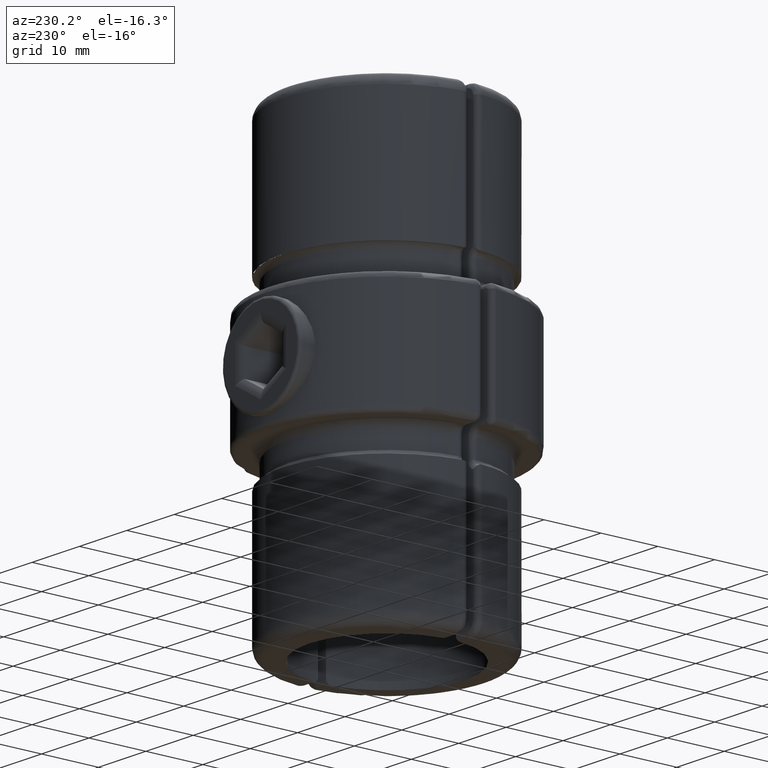
[diagram: clean part render]
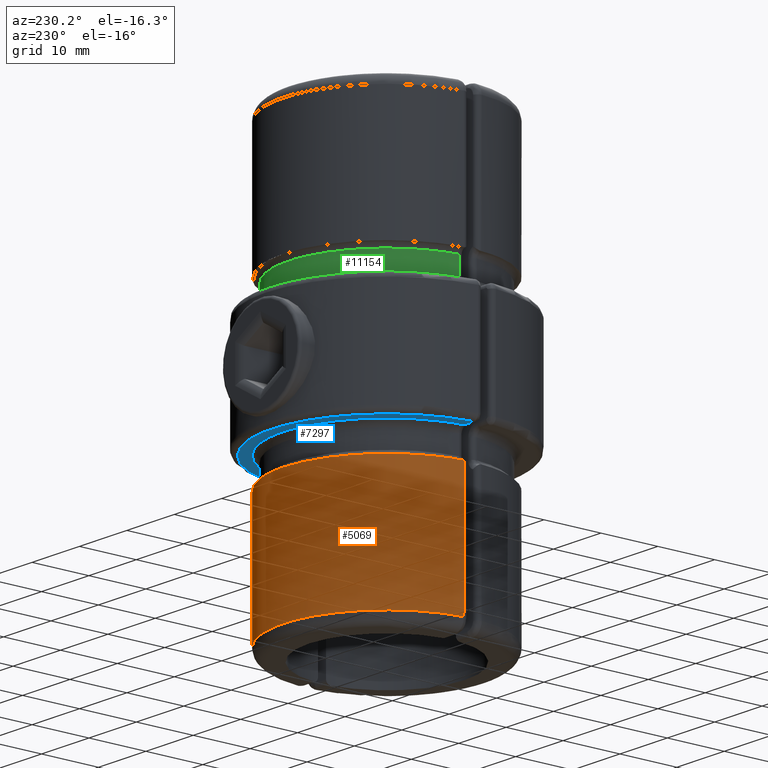
[diagram: same view with three faces highlighted in distinct colors, each labeled with its STEP entity id]
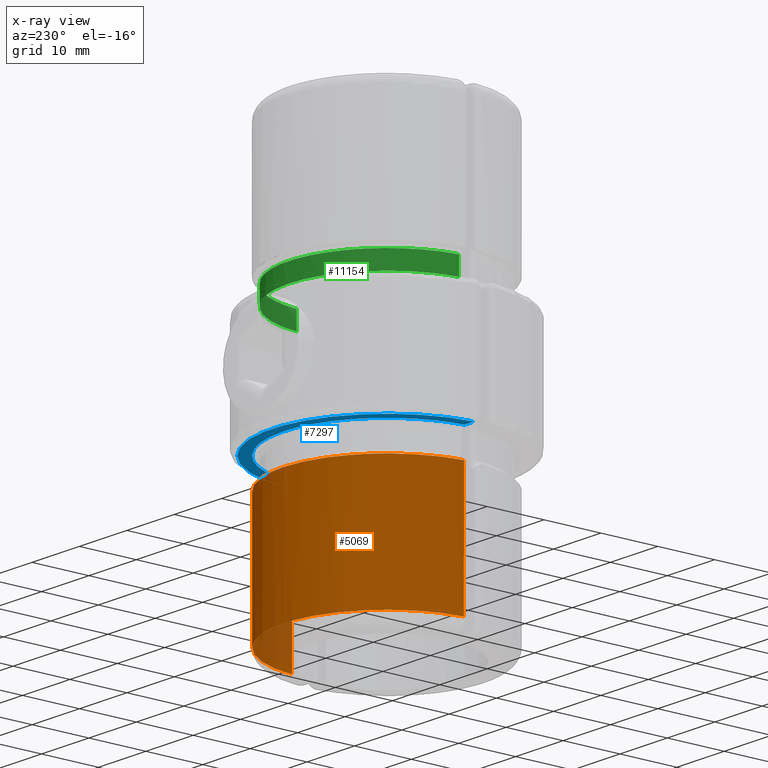
[diagram: x-ray of the same camera — body ghosted, the three highlighted faces saturated]
A machine part, auxiliary view with three faces highlighted in distinct colors.
The next image is the same camera in x-ray (body ghosted, the three faces saturated) — at least one of them is partly hidden behind the body in this view.
Their STEP definitions:

[orange] entity #5069 — the highlighted cylindrical surface (partial cylindrical patch) has radius 18.2 mm, axis along (0, 0, 1).
#38 = VERTEX_POINT ( 'NONE', #4909 ) ;
#111 = CARTESIAN_POINT ( 'NONE',  ( 4.380121277556170867, 16.95941650785749388, -15.00000000000031264 ) ) ;
#250 = CARTESIAN_POINT ( 'NONE',  ( -17.66106902134056966, 3.729701545054194156, -15.00000000000007105 ) ) ;
#346 = EDGE_CURVE ( 'NONE', #1439, #1183, #10502, .T. ) ;
#403 = AXIS2_PLACEMENT_3D ( 'NONE', #4196, #7875, #8712 ) ;
#529 = CARTESIAN_POINT ( 'NONE',  ( -0.6739819862175521203, 17.49998252577996993, -15.00000000000032152 ) ) ;
#541 = CARTESIAN_POINT ( 'NONE',  ( -18.13224606069826095, 0.8689655172413792705, -39.00000000000000000 ) ) ;
#586 = DIRECTION ( 'NONE',  ( 0.000000000000000000, 0.000000000000000000, -1.000000000000000000 ) ) ;
#690 = VERTEX_POINT ( 'NONE', #6384 ) ;
#745 = CARTESIAN_POINT ( 'NONE',  ( 17.27305462890032572, 5.034246575359755838, -14.99999999999999645 ) ) ;
#751 = VERTEX_POINT ( 'NONE', #3823 ) ;
#793 = VERTEX_POINT ( 'NONE', #10571 ) ;
#895 = CARTESIAN_POINT ( 'NONE',  ( -0.0004720416815231677911, 17.49999999417374497, -15.00000000000000355 ) ) ;
#962 = LINE ( 'NONE', #3210, #11663 ) ;
#1183 = VERTEX_POINT ( 'NONE', #11668 ) ;
#1185 = CARTESIAN_POINT ( 'NONE',  ( 18.13224606069826095, 0.8689655172413794926, -15.00000000000001421 ) ) ;
#1197 = CARTESIAN_POINT ( 'NONE',  ( 15.56702937144148002, 8.799113188046440825, -15.00000000000016165 ) ) ;
#1203 = CARTESIAN_POINT ( 'NONE',  ( -0.0004720416815231677911, 17.49999999417374497, -15.00000000000000355 ) ) ;
#1218 = LINE ( 'NONE', #541, #11778 ) ;
#1352 = CARTESIAN_POINT ( 'NONE',  ( -18.12661748769291137, 0.8338622282610865799, -15.00000000000007994 ) ) ;
#1439 = VERTEX_POINT ( 'NONE', #1185 ) ;
#1528 = CARTESIAN_POINT ( 'NONE',  ( -6.651357286202375541, 16.24140225114939895, -15.00000000000029665 ) ) ;
#1564 = EDGE_CURVE ( 'NONE', #690, #10381, #1218, .T. ) ;
#1686 = FACE_OUTER_BOUND ( 'NONE', #8565, .T. ) ;
#1714 = CARTESIAN_POINT ( 'NONE',  ( -14.22104873579294093, 10.65789473688684552, -14.99999999999999645 ) ) ;
#1770 = CARTESIAN_POINT ( 'NONE',  ( 13.36938902045911348, 11.72153165272349362, -15.00000000000021139 ) ) ;
#1928 = CARTESIAN_POINT ( 'NONE',  ( 12.40996758233285036, 12.67890031434739662, -15.00000000000023093 ) ) ;
#2074 = CARTESIAN_POINT ( 'NONE',  ( -14.22104873579294093, 10.65789473688684552, -14.99999999999999645 ) ) ;
#2257 = CARTESIAN_POINT ( 'NONE',  ( -17.99498383455773975, 1.994489871525304547, -15.00000000000003908 ) ) ;
#2423 = AXIS2_PLACEMENT_3D ( 'NONE', #7275, #9027, #10929 ) ;
#2479 = CARTESIAN_POINT ( 'NONE',  ( -3.710971642448241070, 17.11443139066549080, -15.00000000000031086 ) ) ;
#2516 = ORIENTED_EDGE ( 'NONE', *, *, #9982, .F. ) ;
#2552 = VERTEX_POINT ( 'NONE', #2745 ) ;
#2683 = CARTESIAN_POINT ( 'NONE',  ( 9.970821282658006268, 14.55117295317973358, -15.00000000000026645 ) ) ;
#2710 = EDGE_CURVE ( 'NONE', #793, #2552, #5264, .T. ) ;
#2745 = CARTESIAN_POINT ( 'NONE',  ( 14.22104873581677076, 10.65789473685701338, -15.00000000000000178 ) ) ;
#2902 = B_SPLINE_CURVE_WITH_KNOTS ( 'NONE', 3,
 ( #7600, #8416, #3051, #2949, #250, #8564, #9327, #10251, #4759, #11175, #5687, #2257, #3287, #4978, #9519, #6833, #1352 ),
 .UNSPECIFIED., .F., .F.,
 ( 4, 2, 2, 1, 1, 2, 2, 1, 1, 1, 4 ),
 ( 0.000000000000000000, 0.4555956175133276109, 0.5694945218916591667, 0.6833934262699907780, 0.7403428784591565837, 0.7474615599828022816, 0.7510209007446252416, 0.7545802415064482016, 0.7688176045537395975, 0.7972923306483221673, 0.9111912350266520022 ),
 .UNSPECIFIED. ) ;
#2949 = CARTESIAN_POINT ( 'NONE',  ( -17.58130636153897797, 4.031269316505646572, -15.00000000000007816 ) ) ;
#3051 = CARTESIAN_POINT ( 'NONE',  ( -17.15289150558912112, 5.506555992862709914, -15.00000000000010125 ) ) ;
#3210 = CARTESIAN_POINT ( 'NONE',  ( 18.13224606069826095, 0.8689655172413792705, -39.00000000000000000 ) ) ;
#3227 = CARTESIAN_POINT ( 'NONE',  ( -9.119384254672958434, 15.10866548306016632, -15.00000000000027711 ) ) ;
#3287 = CARTESIAN_POINT ( 'NONE',  ( -17.99927492146309049, 1.962552358403034880, -15.00000000000003730 ) ) ;
#3352 = CARTESIAN_POINT ( 'NONE',  ( -4.717378202085979133, 16.88484975057786031, -15.00000000000031442 ) ) ;
#3395 = CARTESIAN_POINT ( 'NONE',  ( -0.0004720416815231677911, 17.49999999417374497, -15.00000000000000355 ) ) ;
#3522 = CARTESIAN_POINT ( 'NONE',  ( 14.22104873581677076, 10.65789473685701338, -15.00000000000000178 ) ) ;
#3593 = CARTESIAN_POINT ( 'NONE',  ( 8.197108797939193892, 15.55172991679808980, -15.00000000000028422 ) ) ;
#3654 = CARTESIAN_POINT ( 'NONE',  ( 0.000000000000000000, -0.6999999999999992895, -14.99999999999998579 ) ) ;
#3672 = ORIENTED_EDGE ( 'NONE', *, *, #2710, .F. ) ;
#3674 = CARTESIAN_POINT ( 'NONE',  ( 1.346201822853276386, 17.50003492198668553, -15.00000000000031442 ) ) ;
#3775 = VERTEX_POINT ( 'NONE', #745 ) ;
#3823 = CARTESIAN_POINT ( 'NONE',  ( 18.13224606069826095, 0.8689655172413794926, -37.00000000000000000 ) ) ;
#3872 = CARTESIAN_POINT ( 'NONE',  ( 16.55833394935635994, 6.912440640826091887, -15.00000000000012790 ) ) ;
#3993 = CARTESIAN_POINT ( 'NONE',  ( 14.22104873581677076, 10.65789473685701338, -15.00000000000000178 ) ) ;
#4038 = CARTESIAN_POINT ( 'NONE',  ( 14.93954629395795841, 9.758274778438677188, -15.00000000000017941 ) ) ;
#4062 = CIRCLE ( 'NONE', #403, 18.19999999999999929 ) ;
#4137 = ORIENTED_EDGE ( 'NONE', *, *, #346, .F. ) ;
#4180 = CARTESIAN_POINT ( 'NONE',  ( -1.684860501366986840, 17.44220744737577533, -15.00000000000031974 ) ) ;
#4196 = CARTESIAN_POINT ( 'NONE',  ( 0.000000000000000000, -0.6999999999999992895, -37.00000000000000000 ) ) ;
#4487 = B_SPLINE_CURVE_WITH_KNOTS ( 'NONE', 3,
 ( #3522, #1770, #1928, #8145, #2683, #9060, #5545, #3593, #9995, #5506, #10919, #5415, #111, #6353, #9184, #3674, #895 ),
 .UNSPECIFIED., .F., .F.,
 ( 4, 2, 1, 2, 2, 1, 1, 2, 2, 4 ),
 ( 0.000000000000000000, 0.2500000000000000000, 0.3749999999999998890, 0.4374999999999999445, 0.5000000000000000000, 0.6250000000000001110, 0.6875000000000000000, 0.7187499999999998890, 0.7499999999999997780, 1.000000000000000000 ),
 .UNSPECIFIED. ) ;
#4554 = EDGE_CURVE ( 'NONE', #751, #690, #4062, .T. ) ;
#4571 = ORIENTED_EDGE ( 'NONE', *, *, #8736, .F. ) ;
#4700 = ORIENTED_EDGE ( 'NONE', *, *, #6293, .F. ) ;
#4736 = ORIENTED_EDGE ( 'NONE', *, *, #6847, .F. ) ;
#4759 = CARTESIAN_POINT ( 'NONE',  ( -17.98811548904091495, 2.044855760659632260, -15.00000000000003730 ) ) ;
#4853 = DIRECTION ( 'NONE',  ( 0.000000000000000000, 1.826865824552319627E-14, 1.000000000000000000 ) ) ;
#4909 = CARTESIAN_POINT ( 'NONE',  ( -16.12896971095767640, 7.731864329020630144, -14.99999999999999467 ) ) ;
#4978 = CARTESIAN_POINT ( 'NONE',  ( -18.01048703634898729, 1.876548190619204082, -15.00000000000003375 ) ) ;
#5069 = ADVANCED_FACE ( 'NONE', ( #1686 ), #10102, .T. ) ;
#5171 = CARTESIAN_POINT ( 'NONE',  ( -3.371396555261315431, 17.18229383523051013, -15.00000000000031442 ) ) ;
#5264 = B_SPLINE_CURVE_WITH_KNOTS ( 'NONE', 3,
 ( #5714, #1197, #4038, #3993 ),
 .UNSPECIFIED., .F., .F.,
 ( 4, 4 ),
 ( 0.000000000000000000, 1.000000000000000000 ),
 .UNSPECIFIED. ) ;
#5415 = CARTESIAN_POINT ( 'NONE',  ( 4.711712327640101172, 16.87417257049558827, -15.00000000000031264 ) ) ;
#5470 = ORIENTED_EDGE ( 'NONE', *, *, #4554, .T. ) ;
#5506 = CARTESIAN_POINT ( 'NONE',  ( 6.340951820920626147, 16.37979551440484016, -15.00000000000030020 ) ) ;
#5545 = CARTESIAN_POINT ( 'NONE',  ( 8.500204663436324637, 15.39553579759656365, -15.00000000000028244 ) ) ;
#5687 = CARTESIAN_POINT ( 'NONE',  ( -17.99326910099349774, 2.007173595738337646, -15.00000000000003730 ) ) ;
#5703 = CARTESIAN_POINT ( 'NONE',  ( 17.27305462890032572, 5.034246575359755838, -14.99999999999999645 ) ) ;
#5714 = CARTESIAN_POINT ( 'NONE',  ( 16.10349796826733737, 7.780409965680305184, -15.00000000000014033 ) ) ;
#5978 = CARTESIAN_POINT ( 'NONE',  ( -7.277246972536633329, 15.98304255627963322, -15.00000000000029843 ) ) ;
#6293 = EDGE_CURVE ( 'NONE', #2552, #7746, #4487, .T. ) ;
#6353 = CARTESIAN_POINT ( 'NONE',  ( 4.214602327242322310, 16.99956558617947877, -15.00000000000031086 ) ) ;
#6384 = CARTESIAN_POINT ( 'NONE',  ( -18.13224606069826095, 0.8689655172413794926, -37.00000000000000000 ) ) ;
#6457 = AXIS2_PLACEMENT_3D ( 'NONE', #3654, #4853, #7318 ) ;
#6496 = B_SPLINE_CURVE_WITH_KNOTS ( 'NONE', 3,
 ( #2074, #9375, #10288, #10329 ),
 .UNSPECIFIED., .F., .F.,
 ( 4, 4 ),
 ( 0.000000000000000000, 1.000000000000000000 ),
 .UNSPECIFIED. ) ;
#6544 = EDGE_CURVE ( 'NONE', #7746, #9246, #7327, .T. ) ;
#6793 = ORIENTED_EDGE ( 'NONE', *, *, #1564, .T. ) ;
#6833 = CARTESIAN_POINT ( 'NONE',  ( -18.08515290998948544, 1.201798481850777200, -15.00000000000002665 ) ) ;
#6847 = EDGE_CURVE ( 'NONE', #1183, #3775, #11785, .T. ) ;
#6848 = CARTESIAN_POINT ( 'NONE',  ( -10.26726017762715593, 14.38778339381206273, -15.00000000000026823 ) ) ;
#6911 = DIRECTION ( 'NONE',  ( -0.000000000000000000, -0.000000000000000000, 1.000000000000000000 ) ) ;
#7013 = CARTESIAN_POINT ( 'NONE',  ( -14.22104873579294093, 10.65789473688684552, -14.99999999999999645 ) ) ;
#7275 = CARTESIAN_POINT ( 'NONE',  ( 0.000000000000000000, -0.6999999999999992895, -14.99999999999998579 ) ) ;
#7318 = DIRECTION ( 'NONE',  ( -1.421085471520200372E-14, 1.000000000000000000, -1.830037952678829587E-14 ) ) ;
#7327 = B_SPLINE_CURVE_WITH_KNOTS ( 'NONE', 3,
 ( #3395, #529, #4180, #10627, #5171, #2479, #3352, #9786, #1528, #5978, #9658, #3227, #6848, #8733, #9704, #7013 ),
 .UNSPECIFIED., .F., .F.,
 ( 4, 1, 2, 2, 1, 2, 2, 2, 4 ),
 ( 0.000000000000000000, 0.1250000000000003608, 0.1875000000000005551, 0.2500000000000007216, 0.3750000000000011102, 0.4375000000000011102, 0.5000000000000011102, 0.7500000000000005551, 1.000000000000000000 ),
 .UNSPECIFIED. ) ;
#7566 = CARTESIAN_POINT ( 'NONE',  ( -18.12661748769291137, 0.8338622282610865799, -15.00000000000007994 ) ) ;
#7600 = CARTESIAN_POINT ( 'NONE',  ( -16.12896971095767640, 7.731864329020630144, -14.99999999999999467 ) ) ;
#7746 = VERTEX_POINT ( 'NONE', #1203 ) ;
#7798 = ORIENTED_EDGE ( 'NONE', *, *, #11072, .F. ) ;
#7875 = DIRECTION ( 'NONE',  ( -0.000000000000000000, -0.000000000000000000, 1.000000000000000000 ) ) ;
#8145 = CARTESIAN_POINT ( 'NONE',  ( 10.80339714920917160, 13.96017310820576718, -15.00000000000025580 ) ) ;
#8416 = CARTESIAN_POINT ( 'NONE',  ( -16.69734027912534913, 6.641735218610569369, -15.00000000000012257 ) ) ;
#8564 = CARTESIAN_POINT ( 'NONE',  ( -17.80091540751438473, 3.128876293197421887, -15.00000000000005684 ) ) ;
#8565 = EDGE_LOOP ( 'NONE', ( #4137, #10120, #5470, #6793, #7798, #4571, #9563, #4700, #3672, #2516, #4736 ) ) ;
#8712 = DIRECTION ( 'NONE',  ( -1.000000000000000000, 0.000000000000000000, 0.000000000000000000 ) ) ;
#8733 = CARTESIAN_POINT ( 'NONE',  ( -12.41099026973281028, 12.67785777498775879, -15.00000000000023448 ) ) ;
#8736 = EDGE_CURVE ( 'NONE', #9246, #38, #6496, .T. ) ;
#9027 = DIRECTION ( 'NONE',  ( 0.000000000000000000, 1.826865824552319627E-14, 1.000000000000000000 ) ) ;
#9060 = CARTESIAN_POINT ( 'NONE',  ( 9.094309441122859994, 15.06771797022087611, -15.00000000000027534 ) ) ;
#9184 = CARTESIAN_POINT ( 'NONE',  ( 2.694942931158101906, 17.34605644751971809, -15.00000000000030909 ) ) ;
#9246 = VERTEX_POINT ( 'NONE', #1714 ) ;
#9327 = CARTESIAN_POINT ( 'NONE',  ( -17.89185594866760454, 2.679304198577611373, -15.00000000000004796 ) ) ;
#9351 = CARTESIAN_POINT ( 'NONE',  ( 16.94818616956733592, 5.997052844052629617, -15.00000000000011013 ) ) ;
#9375 = CARTESIAN_POINT ( 'NONE',  ( -14.95105478016670553, 9.743865176395585692, -15.00000000000017764 ) ) ;
#9519 = CARTESIAN_POINT ( 'NONE',  ( -18.04888484913318436, 1.561358967726091951, -15.00000000000003020 ) ) ;
#9563 = ORIENTED_EDGE ( 'NONE', *, *, #6544, .F. ) ;
#9613 = DIRECTION ( 'NONE',  ( 1.000000000000000000, 0.000000000000000000, 0.000000000000000000 ) ) ;
#9658 = CARTESIAN_POINT ( 'NONE',  ( -7.584997253641968307, 15.84577930970207404, -15.00000000000028955 ) ) ;
#9704 = CARTESIAN_POINT ( 'NONE',  ( -13.37163144043713991, 11.71954915915006445, -15.00000000000021672 ) ) ;
#9786 = CARTESIAN_POINT ( 'NONE',  ( -5.701260751678263183, 16.60261547641788482, -15.00000000000030020 ) ) ;
#9982 = EDGE_CURVE ( 'NONE', #3775, #793, #11698, .T. ) ;
#9995 = CARTESIAN_POINT ( 'NONE',  ( 7.280146086386994675, 15.99214621338774656, -15.00000000000029132 ) ) ;
#10102 = CYLINDRICAL_SURFACE ( 'NONE', #10266, 18.19999999999999929 ) ;
#10120 = ORIENTED_EDGE ( 'NONE', *, *, #11289, .T. ) ;
#10251 = CARTESIAN_POINT ( 'NONE',  ( -17.96479779078999783, 2.212635627524841553, -15.00000000000004619 ) ) ;
#10266 = AXIS2_PLACEMENT_3D ( 'NONE', #11389, #10379, #9613 ) ;
#10268 = CARTESIAN_POINT ( 'NONE',  ( 16.10349796826733737, 7.780409965680305184, -15.00000000000014033 ) ) ;
#10288 = CARTESIAN_POINT ( 'NONE',  ( -15.58702843855494535, 8.768521707106845753, -15.00000000000016165 ) ) ;
#10329 = CARTESIAN_POINT ( 'NONE',  ( -16.12896971095767640, 7.731864329020630144, -14.99999999999999467 ) ) ;
#10379 = DIRECTION ( 'NONE',  ( -0.000000000000000000, -0.000000000000000000, 1.000000000000000000 ) ) ;
#10381 = VERTEX_POINT ( 'NONE', #7566 ) ;
#10502 = CIRCLE ( 'NONE', #2423, 18.19999999999999929 ) ;
#10571 = CARTESIAN_POINT ( 'NONE',  ( 16.10349796826733737, 7.780409965680305184, -15.00000000000014033 ) ) ;
#10627 = CARTESIAN_POINT ( 'NONE',  ( -2.696659414034504376, 17.29780905525132795, -15.00000000000031974 ) ) ;
#10919 = CARTESIAN_POINT ( 'NONE',  ( 5.206319958526729685, 16.73971079000616768, -15.00000000000031086 ) ) ;
#10929 = DIRECTION ( 'NONE',  ( 1.332267629550187849E-14, 1.000000000000000000, -1.830037952678829587E-14 ) ) ;
#11072 = EDGE_CURVE ( 'NONE', #38, #10381, #2902, .T. ) ;
#11175 = CARTESIAN_POINT ( 'NONE',  ( -17.99194730236212436, 2.016896538750871493, -15.00000000000003730 ) ) ;
#11289 = EDGE_CURVE ( 'NONE', #1439, #751, #962, .T. ) ;
#11389 = CARTESIAN_POINT ( 'NONE',  ( 0.000000000000000000, -0.6999999999999992895, -39.00000000000000000 ) ) ;
#11663 = VECTOR ( 'NONE', #586, 1000.000000000000000 ) ;
#11668 = CARTESIAN_POINT ( 'NONE',  ( 17.94613783370012428, 2.329213900310968643, -15.00000000000000178 ) ) ;
#11698 = B_SPLINE_CURVE_WITH_KNOTS ( 'NONE', 3,
 ( #5703, #9351, #3872, #10268 ),
 .UNSPECIFIED., .F., .F.,
 ( 4, 4 ),
 ( 0.000000000000000000, 1.000000000000000000 ),
 .UNSPECIFIED. ) ;
#11778 = VECTOR ( 'NONE', #6911, 1000.000000000000000 ) ;
#11785 = CIRCLE ( 'NONE', #6457, 18.19999999999999929 ) ;

[blue] entity #7297 — the highlighted planar face has unit normal (0, 0, 1).
#13 = CARTESIAN_POINT ( 'NONE',  ( -17.70221729530043220, 3.593814094361744260, -9.999999999999992895 ) ) ;
#21 = CARTESIAN_POINT ( 'NONE',  ( 0.000000000000000000, -0.6999999999999992895, -10.00000000000000000 ) ) ;
#459 = EDGE_LOOP ( 'NONE', ( #6023, #3949, #6665, #8957 ) ) ;
#777 = CARTESIAN_POINT ( 'NONE',  ( 14.91448126178588218, 9.753307741333461678, -9.999999999999998224 ) ) ;
#816 = CARTESIAN_POINT ( 'NONE',  ( 10.57544291475001508, 14.15382735784765345, -9.999999999999998224 ) ) ;
#819 = DIRECTION ( 'NONE',  ( -0.000000000000000000, -0.000000000000000000, -1.000000000000000000 ) ) ;
#851 = CARTESIAN_POINT ( 'NONE',  ( 15.23124711113149843, 9.288921770482751583, -9.999999999999991118 ) ) ;
#888 = CARTESIAN_POINT ( 'NONE',  ( -1.162022980371430814, 17.49906942022029455, -9.999999999999994671 ) ) ;
#932 = CARTESIAN_POINT ( 'NONE',  ( -4.489723940628145726, 16.94067095299777748, -10.00000000000000355 ) ) ;
#1205 = EDGE_CURVE ( 'NONE', #2482, #5867, #5042, .T. ) ;
#1359 = LINE ( 'NONE', #7486, #1639 ) ;
#1533 = CARTESIAN_POINT ( 'NONE',  ( 17.99620978128792714, 1.938966963055449355, -10.00000000000000000 ) ) ;
#1639 = VECTOR ( 'NONE', #2828, 1000.000000000000000 ) ;
#1692 = CARTESIAN_POINT ( 'NONE',  ( -15.24945521659692460, 9.253415285467575302, -9.999999999999992895 ) ) ;
#1723 = CARTESIAN_POINT ( 'NONE',  ( 4.461532457145011676, 16.97363734987648698, -9.999999999999996447 ) ) ;
#1765 = CARTESIAN_POINT ( 'NONE',  ( 8.655016516435384943, 15.32026021457961207, -9.999999999999998224 ) ) ;
#1808 = CARTESIAN_POINT ( 'NONE',  ( -6.118559271017596224, 16.44651514191593122, -10.00000000000000000 ) ) ;
#2042 = VERTEX_POINT ( 'NONE', #5634 ) ;
#2047 = PLANE ( 'NONE',  #8900 ) ;
#2482 = VERTEX_POINT ( 'NONE', #11805 ) ;
#2568 = CARTESIAN_POINT ( 'NONE',  ( 2.250522475414326706, 17.39151896344124637, -9.999999999999994671 ) ) ;
#2603 = CARTESIAN_POINT ( 'NONE',  ( -18.12450449046076528, 0.8000000000013720580, -10.00000000000000178 ) ) ;
#2640 = CARTESIAN_POINT ( 'NONE',  ( 17.39581264085948575, 4.701784986630692664, -10.00000000000000178 ) ) ;
#2712 = CARTESIAN_POINT ( 'NONE',  ( -16.10615608756123862, 7.795733788880173876, -10.00000000000000000 ) ) ;
#2828 = DIRECTION ( 'NONE',  ( -1.000000000000000000, -0.000000000000000000, 0.000000000000000000 ) ) ;
#2933 = CARTESIAN_POINT ( 'NONE',  ( 18.11233562530158991, 0.8000000000002027711, -9.999999999999998224 ) ) ;
#2996 = CARTESIAN_POINT ( 'NONE',  ( 0.000000000000000000, -0.6999999999999992895, -10.00000000000000000 ) ) ;
#3398 = EDGE_CURVE ( 'NONE', #2042, #2482, #10617, .T. ) ;
#3481 = CARTESIAN_POINT ( 'NONE',  ( 14.23907339614066281, 10.65028305820641208, -10.00000000000000000 ) ) ;
#3552 = CARTESIAN_POINT ( 'NONE',  ( -5.579910639704651842, 16.62815594502716365, -10.00000000000000355 ) ) ;
#3603 = B_SPLINE_CURVE_WITH_KNOTS ( 'NONE', 3,
 ( #6075, #6981, #1533, #6393, #4500, #2640, #10913, #9101, #8110, #7230, #10023, #851, #777, #3481, #8180, #7265, #6305, #9956, #816, #9992, #1765, #5411, #11817, #8022, #1723, #2568, #5457, #888, #9869, #11735, #932, #3552, #1808, #4539, #8946, #4394, #9012, #5292, #10808, #11706, #7295, #8140, #1692, #10958, #2712, #5376, #6240, #7142, #10842, #13, #4459, #8069, #6273, #2603 ),
 .UNSPECIFIED., .F., .F.,
 ( 4, 2, 2, 2, 2, 2, 2, 2, 2, 2, 2, 2, 2, 2, 2, 2, 2, 2, 2, 2, 2, 2, 2, 2, 2, 2, 4 ),
 ( 0.0007115952799443177063, 0.002426533211132543555, 0.004141471142320769620, 0.005856409073508995686, 0.007571347004697221751, 0.009286284935885447817, 0.01100122286707367128, 0.01271616079826189474, 0.01443109872945011647, 0.01786097459182656513, 0.01957591252301479207, 0.02129085045420301900, 0.02472072631657947286, 0.02815060217895592673, 0.03158047804133238406, 0.03329541597252060753, 0.03501035390370883099, 0.03844022976608528486, 0.04015516769727351526, 0.04187010562846173872, 0.04529998149083819259, 0.04701491942202642993, 0.04872985735321466033, 0.05044479528440289767, 0.05215973321559112114, 0.05387467114677935848, 0.05558960907796758888 ),
 .UNSPECIFIED. ) ;
#3949 = ORIENTED_EDGE ( 'NONE', *, *, #1205, .T. ) ;
#4080 = EDGE_CURVE ( 'NONE', #5867, #4393, #3603, .T. ) ;
#4241 = DIRECTION ( 'NONE',  ( -1.000000000000000000, -0.000000000000000000, 0.000000000000000000 ) ) ;
#4393 = VERTEX_POINT ( 'NONE', #5119 ) ;
#4394 = CARTESIAN_POINT ( 'NONE',  ( -10.12380400406344272, 14.43419958724293117, -10.00000000000000533 ) ) ;
#4459 = CARTESIAN_POINT ( 'NONE',  ( -17.82829829604467520, 3.040119092853449168, -9.999999999999994671 ) ) ;
#4500 = CARTESIAN_POINT ( 'NONE',  ( 17.70270835471821513, 3.618755232643094732, -9.999999999999998224 ) ) ;
#4539 = CARTESIAN_POINT ( 'NONE',  ( -7.691829432135279809, 15.83280157730101578, -10.00000000000000355 ) ) ;
#5042 = LINE ( 'NONE', #7116, #5336 ) ;
#5119 = CARTESIAN_POINT ( 'NONE',  ( -18.12450449046076528, 0.8000000000013720580, -10.00000000000000178 ) ) ;
#5292 = CARTESIAN_POINT ( 'NONE',  ( -11.49186830044448193, 13.42178049540288498, -10.00000000000000533 ) ) ;
#5336 = VECTOR ( 'NONE', #4241, 1000.000000000000000 ) ;
#5376 = CARTESIAN_POINT ( 'NONE',  ( -16.59741525635840631, 6.787427562784810853, -10.00000000000000000 ) ) ;
#5411 = CARTESIAN_POINT ( 'NONE',  ( 7.642848318931247498, 15.82645478318520382, -9.999999999999998224 ) ) ;
#5457 = CARTESIAN_POINT ( 'NONE',  ( 1.112037588378409714, 17.50245730029014979, -9.999999999999996447 ) ) ;
#5634 = CARTESIAN_POINT ( 'NONE',  ( -20.14422994308791814, 0.7999999999999999334, -10.00000000000000000 ) ) ;
#5867 = VERTEX_POINT ( 'NONE', #2933 ) ;
#6023 = ORIENTED_EDGE ( 'NONE', *, *, #3398, .T. ) ;
#6075 = CARTESIAN_POINT ( 'NONE',  ( 18.11233562530158991, 0.8000000000002027711, -9.999999999999998224 ) ) ;
#6240 = CARTESIAN_POINT ( 'NONE',  ( -16.81953575042295768, 6.272526144199046527, -10.00000000000000000 ) ) ;
#6273 = CARTESIAN_POINT ( 'NONE',  ( -18.07535417166109326, 1.363748154807671087, -9.999999999999989342 ) ) ;
#6305 = CARTESIAN_POINT ( 'NONE',  ( 12.72406315716970049, 12.32233253770125536, -9.999999999999998224 ) ) ;
#6393 = CARTESIAN_POINT ( 'NONE',  ( 17.82137342271740366, 3.065723314614019923, -9.999999999999996447 ) ) ;
#6665 = ORIENTED_EDGE ( 'NONE', *, *, #4080, .T. ) ;
#6981 = CARTESIAN_POINT ( 'NONE',  ( 18.05678715736100060, 1.368965338109550567, -9.999999999999998224 ) ) ;
#7116 = CARTESIAN_POINT ( 'NONE',  ( 0.000000000000000000, 0.7999999999999999334, -10.00000000000000000 ) ) ;
#7142 = CARTESIAN_POINT ( 'NONE',  ( -17.21862937165055385, 5.222082027981653773, -9.999999999999996447 ) ) ;
#7230 = CARTESIAN_POINT ( 'NONE',  ( 16.09171581483038338, 7.823922235687641447, -10.00000000000000355 ) ) ;
#7265 = CARTESIAN_POINT ( 'NONE',  ( 13.12429819998603087, 11.91855289120720052, -10.00000000000000533 ) ) ;
#7295 = CARTESIAN_POINT ( 'NONE',  ( -13.91589773808793851, 11.08509214219094652, -10.00000000000000000 ) ) ;
#7297 = ADVANCED_FACE ( 'NONE', ( #9640 ), #2047, .F. ) ;
#7486 = CARTESIAN_POINT ( 'NONE',  ( 0.000000000000000000, 0.7999999999999999334, -10.00000000000000000 ) ) ;
#7951 = EDGE_CURVE ( 'NONE', #4393, #2042, #1359, .T. ) ;
#8022 = CARTESIAN_POINT ( 'NONE',  ( 5.541404755337010712, 16.66815725459020925, -10.00000000000000000 ) ) ;
#8069 = CARTESIAN_POINT ( 'NONE',  ( -18.01522068354221062, 1.925856245450351834, -9.999999999999992895 ) ) ;
#8110 = CARTESIAN_POINT ( 'NONE',  ( 16.58440940712883815, 6.802412614388439138, -10.00000000000000355 ) ) ;
#8140 = CARTESIAN_POINT ( 'NONE',  ( -14.92987158567900430, 9.726504541896424882, -10.00000000000000178 ) ) ;
#8180 = CARTESIAN_POINT ( 'NONE',  ( 13.88089460920789264, 11.08322413485400482, -10.00000000000000888 ) ) ;
#8310 = DIRECTION ( 'NONE',  ( 1.000000000000000000, 0.000000000000000000, -0.000000000000000000 ) ) ;
#8430 = DIRECTION ( 'NONE',  ( 0.000000000000000000, 0.000000000000000000, 1.000000000000000000 ) ) ;
#8900 = AXIS2_PLACEMENT_3D ( 'NONE', #2996, #8430, #8310 ) ;
#8946 = CARTESIAN_POINT ( 'NONE',  ( -8.693146035219829315, 15.32973339890842546, -10.00000000000000888 ) ) ;
#8957 = ORIENTED_EDGE ( 'NONE', *, *, #7951, .T. ) ;
#9012 = CARTESIAN_POINT ( 'NONE',  ( -10.59034246838874260, 14.11084259246376149, -10.00000000000000533 ) ) ;
#9101 = CARTESIAN_POINT ( 'NONE',  ( 16.80688809360775693, 6.283754757233292132, -10.00000000000000000 ) ) ;
#9640 = FACE_OUTER_BOUND ( 'NONE', #459, .T. ) ;
#9869 = CARTESIAN_POINT ( 'NONE',  ( -2.282478074274230107, 17.38739418027071792, -9.999999999999994671 ) ) ;
#9956 = CARTESIAN_POINT ( 'NONE',  ( 11.47046972469695447, 13.47397389574474147, -9.999999999999992895 ) ) ;
#9992 = CARTESIAN_POINT ( 'NONE',  ( 9.146078540673499901, 15.04489311691254194, -9.999999999999994671 ) ) ;
#10023 = CARTESIAN_POINT ( 'NONE',  ( 15.81949250755298308, 8.325763884033584361, -9.999999999999996447 ) ) ;
#10030 = DIRECTION ( 'NONE',  ( 1.000000000000000000, 0.000000000000000000, 0.000000000000000000 ) ) ;
#10617 = CIRCLE ( 'NONE', #10739, 20.19999999999999929 ) ;
#10739 = AXIS2_PLACEMENT_3D ( 'NONE', #21, #819, #10030 ) ;
#10808 = CARTESIAN_POINT ( 'NONE',  ( -11.92352173607014443, 13.05889236252900076, -9.999999999999994671 ) ) ;
#10842 = CARTESIAN_POINT ( 'NONE',  ( -17.39638150087872503, 4.686895488418774569, -9.999999999999996447 ) ) ;
#10913 = CARTESIAN_POINT ( 'NONE',  ( 17.21163237314584649, 5.233123956315099079, -9.999999999999996447 ) ) ;
#10958 = CARTESIAN_POINT ( 'NONE',  ( -15.83681987016426618, 8.289048280308461969, -9.999999999999992895 ) ) ;
#11706 = CARTESIAN_POINT ( 'NONE',  ( -13.16311011980706347, 11.91703619511279122, -9.999999999999996447 ) ) ;
#11735 = CARTESIAN_POINT ( 'NONE',  ( -3.940735189224207513, 17.07108131141950125, -9.999999999999996447 ) ) ;
#11805 = CARTESIAN_POINT ( 'NONE',  ( 20.14422994308791814, 0.8000000000000003775, -10.00000000000000000 ) ) ;
#11817 = CARTESIAN_POINT ( 'NONE',  ( 7.120694704499797467, 16.05733406561677512, -9.999999999999996447 ) ) ;

[green] entity #11154 — the highlighted face is a freeform B-spline surface patch.
#71 = CARTESIAN_POINT ( 'NONE',  ( -13.56820539807004522, 10.01473124329863396, 14.19999999999986073 ) ) ;
#164 = CARTESIAN_POINT ( 'NONE',  ( 17.10031338063511797, 0.8793898218311961834, 14.19999999999998863 ) ) ;
#509 = CARTESIAN_POINT ( 'NONE',  ( 16.39028066182581256, 4.701058752631950277, 15.00000000000004263 ) ) ;
#564 = CARTESIAN_POINT ( 'NONE',  ( 3.312429241387992551, 16.27476859176374901, 11.00000000000002665 ) ) ;
#983 = CARTESIAN_POINT ( 'NONE',  ( -11.50928031455421063, 12.18559213759045434, 14.19999999999982343 ) ) ;
#1056 = LINE ( 'NONE', #7721, #9183 ) ;
#1075 = DIRECTION ( 'NONE',  ( -0.000000000000000000, -0.000000000000000000, 1.000000000000000000 ) ) ;
#1299 = CARTESIAN_POINT ( 'NONE',  ( -13.56820539807006476, 10.01473124329864994, 15.00000000000003020 ) ) ;
#1560 = CARTESIAN_POINT ( 'NONE',  ( 17.04725157060843088, 1.411446803594648802, 11.00000000000001066 ) ) ;
#1873 = EDGE_CURVE ( 'NONE', #8522, #5932, #9881, .T. ) ;
#1884 = CARTESIAN_POINT ( 'NONE',  ( -6.352347767468621065, 15.38853061813685486, 14.19999999999984119 ) ) ;
#1899 = LINE ( 'NONE', #1903, #8318 ) ;
#1903 = CARTESIAN_POINT ( 'NONE',  ( -17.11405182881318865, 0.8727410715269527941, 11.00000000000001066 ) ) ;
#2002 = CARTESIAN_POINT ( 'NONE',  ( 3.312429241388013867, 16.27476859176384139, 14.19999999999986429 ) ) ;
#2378 = CARTESIAN_POINT ( 'NONE',  ( -16.34216686767960525, 4.877511404024817310, 15.00000000000001066 ) ) ;
#2396 = CARTESIAN_POINT ( 'NONE',  ( 6.424366977651567723, 15.36052792733479855, 11.00000000000002309 ) ) ;
#2455 = CARTESIAN_POINT ( 'NONE',  ( -15.20577924389122160, 7.534230278514251644, 9.999999999999998224 ) ) ;
#2506 = CARTESIAN_POINT ( 'NONE',  ( -16.99923064808442064, 2.372994257959209818, 10.00000000000004086 ) ) ;
#2583 = CARTESIAN_POINT ( 'NONE',  ( 13.61766674381584963, 9.946240515109984415, 10.00000000000001243 ) ) ;
#2701 = ORIENTED_EDGE ( 'NONE', *, *, #2952, .T. ) ;
#2919 = CARTESIAN_POINT ( 'NONE',  ( 17.10031338063511797, 0.8793898218311961834, 14.19999999999998863 ) ) ;
#2952 = EDGE_CURVE ( 'NONE', #10297, #8522, #1899, .T. ) ;
#3123 = CARTESIAN_POINT ( 'NONE',  ( -9.133925785202130498, 13.98161375896854430, 15.00000000000005684 ) ) ;
#3208 = CARTESIAN_POINT ( 'NONE',  ( 3.312429241388018308, 16.27476859176386270, 15.00000000000003375 ) ) ;
#3229 = ORIENTED_EDGE ( 'NONE', *, *, #5217, .T. ) ;
#3266 = CARTESIAN_POINT ( 'NONE',  ( -16.34216686767955551, 4.877511404024790664, 11.00000000000000711 ) ) ;
#3294 = VERTEX_POINT ( 'NONE', #7991 ) ;
#3305 = CARTESIAN_POINT ( 'NONE',  ( -17.07134708550743696, 1.340458614536533366, 11.00000000000001599 ) ) ;
#3332 = CARTESIAN_POINT ( 'NONE',  ( 6.424366977651556176, 15.36052792733477190, 10.00000000000003020 ) ) ;
#3376 = CARTESIAN_POINT ( 'NONE',  ( 15.23534324757426361, 7.498150152843238381, 10.00000000000002665 ) ) ;
#3417 = CARTESIAN_POINT ( 'NONE',  ( 17.18356612042276055, 2.168404344971009361E-16, 9.999999999999994671 ) ) ;
#3675 = CARTESIAN_POINT ( 'NONE',  ( -16.92484932384070362, 2.656512095148591435, 14.19999999999986784 ) ) ;
#3902 = CARTESIAN_POINT ( 'NONE',  ( 16.88527864714517079, 2.829721671739519273, 14.19999999999986962 ) ) ;
#4097 = CARTESIAN_POINT ( 'NONE',  ( -17.11405182881322062, 0.8727410715271104458, 14.20000000000000462 ) ) ;
#4117 = CARTESIAN_POINT ( 'NONE',  ( 9.199499041160649426, 13.93978840310647804, 15.00000000000003197 ) ) ;
#4248 = CARTESIAN_POINT ( 'NONE',  ( 0.03871444328211221669, 16.61092540465364209, 10.00000000000003197 ) ) ;
#4260 = CARTESIAN_POINT ( 'NONE',  ( 0.03871444328211399999, 16.61092540465367051, 11.00000000000002487 ) ) ;
#4279 = CARTESIAN_POINT ( 'NONE',  ( 17.10659569673811475, 0.8349957779415290160, 15.00000000000001066 ) ) ;
#4340 = CARTESIAN_POINT ( 'NONE',  ( -17.11405182881313536, 0.8727410715275595310, 11.00000000000001243 ) ) ;
#4369 = CARTESIAN_POINT ( 'NONE',  ( 11.56641842014833443, 12.13615826895727956, 10.00000000000003197 ) ) ;
#4419 = B_SPLINE_CURVE_WITH_KNOTS ( 'NONE', 3,
 ( #7109, #1560, #5123, #7815, #11572, #9738, #6108, #6938, #2396, #564, #4260, #6063, #7944, #6976, #11544, #8731, #8775, #3266, #10671, #3305, #4340 ),
 .UNSPECIFIED., .F., .F.,
 ( 4, 1, 1, 1, 1, 1, 1, 1, 1, 1, 1, 1, 1, 1, 1, 1, 1, 1, 4 ),
 ( 0.0008822317528111090542, 0.002357468325730801423, 0.004930511196933498423, 0.007810696333422084865, 0.01100449115708765878, 0.01379365285855449139, 0.01676093604833737635, 0.01988430779623387434, 0.02312232326758462825, 0.02641632560548165531, 0.02971032790356494674, 0.03294834338265197754, 0.03607171512288390169, 0.03903899830651500619, 0.04182816002661909893, 0.04502195485289788024, 0.04790213998963138015, 0.05046862451477104883, 0.05187726342843761163 ),
 .UNSPECIFIED. ) ;
#4581 = CARTESIAN_POINT ( 'NONE',  ( -15.20577924389124114, 7.534230278514274737, 14.19999999999983054 ) ) ;
#4772 = CARTESIAN_POINT ( 'NONE',  ( 13.61766674381589581, 9.946240515110011060, 14.19999999999984297 ) ) ;
#4945 = CARTESIAN_POINT ( 'NONE',  ( -3.236509110125407318, 16.28971485916785511, 15.00000000000003908 ) ) ;
#5030 = CARTESIAN_POINT ( 'NONE',  ( 13.61766674381590470, 9.946240515110014613, 15.00000000000001421 ) ) ;
#5123 = CARTESIAN_POINT ( 'NONE',  ( 16.88527864714505355, 2.829721671739486411, 11.00000000000003375 ) ) ;
#5217 = EDGE_CURVE ( 'NONE', #3294, #10297, #4419, .T. ) ;
#5271 = CARTESIAN_POINT ( 'NONE',  ( -11.50928031455422307, 12.18559213759047388, 9.999999999999996447 ) ) ;
#5353 = EDGE_LOOP ( 'NONE', ( #3229, #2701, #6569, #7305 ) ) ;
#5507 = CARTESIAN_POINT ( 'NONE',  ( -17.11405182881322062, 0.8727410715271104458, 14.20000000000000462 ) ) ;
#5885 = DIRECTION ( 'NONE',  ( 0.000000000000000000, 0.000000000000000000, -1.000000000000000000 ) ) ;
#5932 = VERTEX_POINT ( 'NONE', #164 ) ;
#5964 = CARTESIAN_POINT ( 'NONE',  ( 15.23534324757437552, 7.498150152843284566, 15.00000000000002487 ) ) ;
#6063 = CARTESIAN_POINT ( 'NONE',  ( -3.236509110125379785, 16.28971485916772011, 11.00000000000003375 ) ) ;
#6108 = CARTESIAN_POINT ( 'NONE',  ( 11.56641842014835930, 12.13615826895730443, 11.00000000000002487 ) ) ;
#6215 = CARTESIAN_POINT ( 'NONE',  ( 16.94274805395639660, 2.612458904672626758, 10.00000000000004086 ) ) ;
#6569 = ORIENTED_EDGE ( 'NONE', *, *, #1873, .T. ) ;
#6877 = CARTESIAN_POINT ( 'NONE',  ( 16.94274805395658845, 2.612458904672606774, 15.00000000000003908 ) ) ;
#6938 = CARTESIAN_POINT ( 'NONE',  ( 9.199499041160587254, 13.93978840310638745, 11.00000000000002309 ) ) ;
#6962 = CARTESIAN_POINT ( 'NONE',  ( -17.12657368175269568, 0.7596481838752107141, 10.00000000000001243 ) ) ;
#6976 = CARTESIAN_POINT ( 'NONE',  ( -9.133925785202006153, 13.98161375896835068, 11.00000000000005151 ) ) ;
#7090 = CARTESIAN_POINT ( 'NONE',  ( 3.312429241387985446, 16.27476859176372059, 10.00000000000003197 ) ) ;
#7109 = CARTESIAN_POINT ( 'NONE',  ( 17.10031338063511441, 0.8793898218310545190, 11.00000000000001066 ) ) ;
#7126 = CARTESIAN_POINT ( 'NONE',  ( -13.56820539806994041, 10.01473124329854514, 10.00000000000003197 ) ) ;
#7305 = ORIENTED_EDGE ( 'NONE', *, *, #8849, .T. ) ;
#7345 = CARTESIAN_POINT ( 'NONE',  ( -9.133925785202105629, 13.98161375896850700, 14.19999999999988383 ) ) ;
#7707 = CARTESIAN_POINT ( 'NONE',  ( -17.12657368175275963, 0.7596481838752233706, 15.00000000000001421 ) ) ;
#7721 = CARTESIAN_POINT ( 'NONE',  ( 17.10031338063513218, 0.8793898218310568504, 14.19999999999999041 ) ) ;
#7815 = CARTESIAN_POINT ( 'NONE',  ( 16.39028066182561005, 4.701058752631871229, 11.00000000000004086 ) ) ;
#7839 = CARTESIAN_POINT ( 'NONE',  ( -17.18653347947321564, 0.000000000000000000, 15.00000000000000178 ) ) ;
#7944 = CARTESIAN_POINT ( 'NONE',  ( -6.352347767468617512, 15.38853061813682288, 11.00000000000000533 ) ) ;
#7968 = CARTESIAN_POINT ( 'NONE',  ( 17.18356612042271436, 2.168404344971009361E-16, 14.99999999999999645 ) ) ;
#7991 = CARTESIAN_POINT ( 'NONE',  ( 17.10031338063511441, 0.8793898218310545190, 11.00000000000001066 ) ) ;
#8045 = CARTESIAN_POINT ( 'NONE',  ( 9.199499041160571267, 13.93978840310636258, 10.00000000000002842 ) ) ;
#8268 = CARTESIAN_POINT ( 'NONE',  ( -3.236509110125401989, 16.28971485916783024, 14.19999999999986784 ) ) ;
#8298 = CARTESIAN_POINT ( 'NONE',  ( -17.11405182881313536, 0.8727410715275595310, 11.00000000000001243 ) ) ;
#8318 = VECTOR ( 'NONE', #1075, 1000.000000000000000 ) ;
#8393 = CARTESIAN_POINT ( 'NONE',  ( 15.23534324757435954, 7.498150152843277461, 14.19999999999985363 ) ) ;
#8440 = B_SPLINE_SURFACE_WITH_KNOTS ( 'NONE', 1, 3, ( 
 ( #7839, #7707, #11373, #2378, #11329, #1299, #10480, #3123, #10431, #4945, #8682, #3208, #9595, #4117, #10524, #5030, #5964, #509, #6877, #4279, #7968 ),
 ( #9725, #6962, #2506, #9852, #2455, #7126, #5271, #8836, #10697, #8875, #4248, #7090, #3332, #8045, #4369, #2583, #3376, #8920, #6215, #11600, #3417 ) ),
 .UNSPECIFIED., .F., .F., .F.,
 ( 2, 2 ),
 ( 4, 1, 1, 1, 1, 1, 1, 1, 1, 1, 1, 1, 1, 1, 1, 1, 1, 1, 4 ),
 ( 0.5783208046149549419, 0.9297201341024924348 ),
 ( 0.000000000000000000, 0.04335570658318994852, 0.09207914991424213935, 0.1467580446895520863, 0.2073906647988563445, 0.2603415248876140287, 0.3166739331404812563, 0.3759696056825622135, 0.4374417330828943573, 0.4999767426381468427, 0.5625117529492434931, 0.6239838802027062314, 0.6832795528902954052, 0.7396119612599512116, 0.7925628209948895053, 0.8531954410545833367, 0.9078743358252437945, 0.9567222861227776542, 1.000000000000000000 ),
 .UNSPECIFIED. ) ;
#8467 = CARTESIAN_POINT ( 'NONE',  ( 0.03871444328211969682, 16.61092540465376644, 14.19999999999986073 ) ) ;
#8522 = VERTEX_POINT ( 'NONE', #4097 ) ;
#8682 = CARTESIAN_POINT ( 'NONE',  ( 0.03871444328212111929, 16.61092540465378775, 15.00000000000003020 ) ) ;
#8731 = CARTESIAN_POINT ( 'NONE',  ( -13.56820539806996351, 10.01473124329856645, 11.00000000000002487 ) ) ;
#8775 = CARTESIAN_POINT ( 'NONE',  ( -15.20577924389122693, 7.534230278514256973, 10.99999999999999289 ) ) ;
#8836 = CARTESIAN_POINT ( 'NONE',  ( -9.133925785201975955, 13.98161375896830094, 10.00000000000005507 ) ) ;
#8849 = EDGE_CURVE ( 'NONE', #5932, #3294, #1056, .T. ) ;
#8875 = CARTESIAN_POINT ( 'NONE',  ( -3.236509110125373123, 16.28971485916768813, 10.00000000000003908 ) ) ;
#8920 = CARTESIAN_POINT ( 'NONE',  ( 16.39028066182555676, 4.701058752631850801, 10.00000000000004619 ) ) ;
#9143 = CARTESIAN_POINT ( 'NONE',  ( -17.07134708550753999, 1.340458614536241599, 14.19999999999985185 ) ) ;
#9183 = VECTOR ( 'NONE', #5885, 1000.000000000000000 ) ;
#9299 = CARTESIAN_POINT ( 'NONE',  ( 11.56641842014843746, 12.13615826895738259, 14.19999999999986251 ) ) ;
#9595 = CARTESIAN_POINT ( 'NONE',  ( 6.424366977651614796, 15.36052792733491046, 15.00000000000002665 ) ) ;
#9725 = CARTESIAN_POINT ( 'NONE',  ( -17.18653347947321564, 0.000000000000000000, 10.00000000000000000 ) ) ;
#9738 = CARTESIAN_POINT ( 'NONE',  ( 13.61766674381586029, 9.946240515109991520, 11.00000000000000888 ) ) ;
#9852 = CARTESIAN_POINT ( 'NONE',  ( -16.34216686767954130, 4.877511404024784447, 10.00000000000001066 ) ) ;
#9881 = B_SPLINE_CURVE_WITH_KNOTS ( 'NONE', 3,
 ( #5507, #9143, #3675, #10077, #4581, #71, #983, #7345, #1884, #8268, #8467, #2002, #11121, #11191, #9299, #4772, #8393, #11083, #3902, #10292, #2919 ),
 .UNSPECIFIED., .F., .F.,
 ( 4, 1, 1, 1, 1, 1, 1, 1, 1, 1, 1, 1, 1, 1, 1, 1, 1, 1, 4 ),
 ( 0.0008737977590386582574, 0.002280440958247524630, 0.004843289370382106683, 0.007719393953139861049, 0.01090866391328768753, 0.01369387403847492635, 0.01665695327040941573, 0.01977589991768124653, 0.02300932788023394779, 0.02629866334145244261, 0.02958799884242826334, 0.03282142679725565115, 0.03594037345218119989, 0.03890345269025875796, 0.04168866279683513393, 0.04487793275437345492, 0.04775403733688664970, 0.05032343480342978820, 0.05179658130846237496 ),
 .UNSPECIFIED. ) ;
#9952 = FACE_OUTER_BOUND ( 'NONE', #5353, .T. ) ;
#10077 = CARTESIAN_POINT ( 'NONE',  ( -16.34216686767959459, 4.877511404024811981, 14.19999999999983942 ) ) ;
#10292 = CARTESIAN_POINT ( 'NONE',  ( 17.04725157060847351, 1.411446803594741395, 14.19999999999984830 ) ) ;
#10297 = VERTEX_POINT ( 'NONE', #8298 ) ;
#10431 = CARTESIAN_POINT ( 'NONE',  ( -6.352347767468621953, 15.38853061813686196, 15.00000000000001421 ) ) ;
#10480 = CARTESIAN_POINT ( 'NONE',  ( -11.50928031455420708, 12.18559213759044901, 14.99999999999999645 ) ) ;
#10524 = CARTESIAN_POINT ( 'NONE',  ( 11.56641842014845523, 12.13615826895740213, 15.00000000000003197 ) ) ;
#10671 = CARTESIAN_POINT ( 'NONE',  ( -16.92484932384054375, 2.656512095148715336, 11.00000000000003197 ) ) ;
#10697 = CARTESIAN_POINT ( 'NONE',  ( -6.352347767468616624, 15.38853061813681400, 10.00000000000000888 ) ) ;
#11083 = CARTESIAN_POINT ( 'NONE',  ( 16.39028066182577348, 4.701058752631934290, 14.19999999999987317 ) ) ;
#11121 = CARTESIAN_POINT ( 'NONE',  ( 6.424366977651605914, 15.36052792733488914, 14.19999999999985718 ) ) ;
#11154 = ADVANCED_FACE ( 'NONE', ( #9952 ), #8440, .F. ) ;
#11191 = CARTESIAN_POINT ( 'NONE',  ( 9.199499041160636992, 13.93978840310646028, 14.19999999999986073 ) ) ;
#11329 = CARTESIAN_POINT ( 'NONE',  ( -15.20577924389124469, 7.534230278514279178, 15.00000000000000178 ) ) ;
#11373 = CARTESIAN_POINT ( 'NONE',  ( -16.99923064808461959, 2.372994257959249342, 15.00000000000003908 ) ) ;
#11544 = CARTESIAN_POINT ( 'NONE',  ( -11.50928031455421952, 12.18559213759046855, 10.99999999999999112 ) ) ;
#11572 = CARTESIAN_POINT ( 'NONE',  ( 15.23534324757428671, 7.498150152843248151, 11.00000000000001954 ) ) ;
#11600 = CARTESIAN_POINT ( 'NONE',  ( 17.10659569673808278, 0.8349957779415354553, 10.00000000000000888 ) ) ;